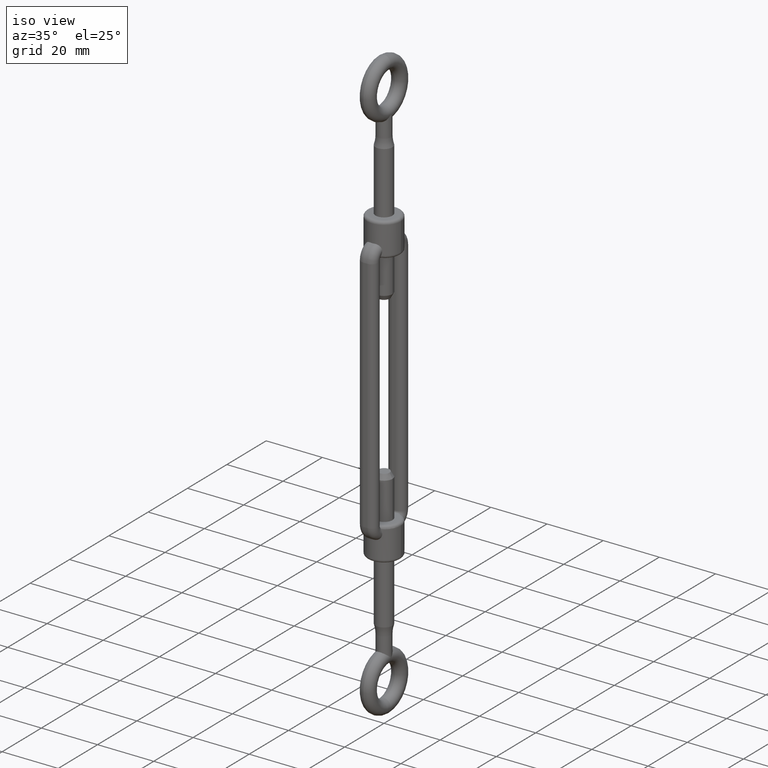
[diagram: clean part render]
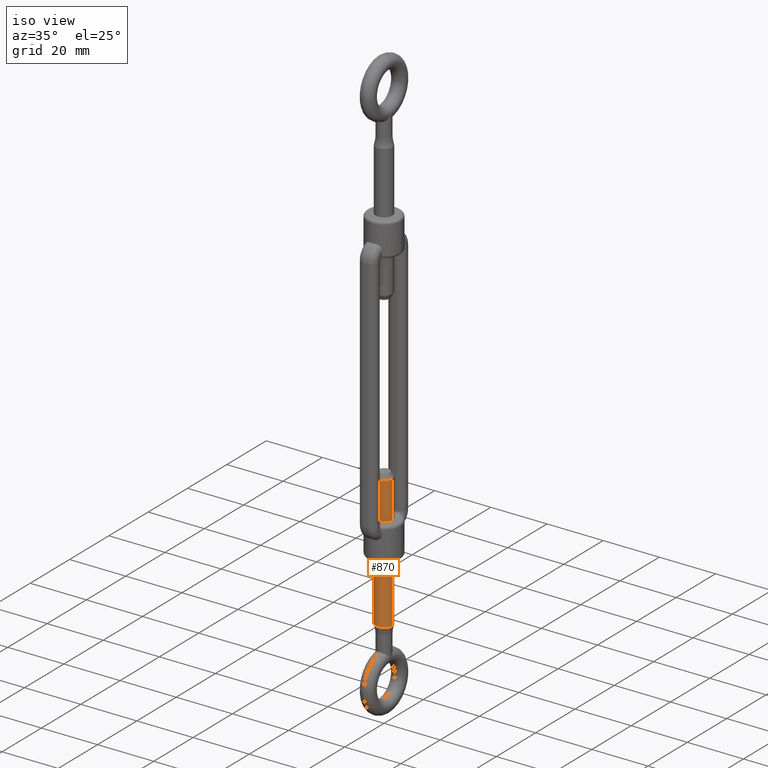
[diagram: same view with one face highlighted and labeled with its STEP entity id]
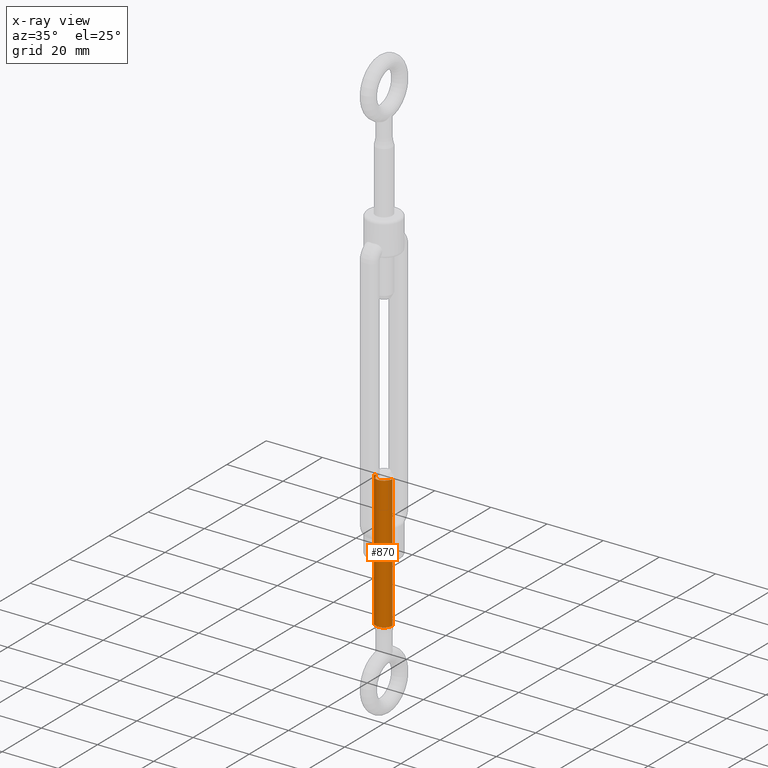
[diagram: x-ray of the same camera — body ghosted, the highlighted face saturated]
A machine part, iso view. The second image highlights one B-rep face of the part: STEP entity #870.
The next image is the same camera in x-ray: the body ghosted, the highlighted face saturated — about 0% of this face is hidden behind the body in this view.
In plain terms, the highlighted cylindrical surface (edge-blend (fillet) strip) has radius 3 mm, axis along (-0, 0, 1).
Its self-contained STEP definition (entity closure, byte-faithful):
#152 = VERTEX_POINT ( 'NONE', #17643 ) ;
#409 = CARTESIAN_POINT ( 'NONE',  ( 0.0000000000000000000, -28.99999999999999600, -3.000000000000000400 ) ) ;
#435 = ORIENTED_EDGE ( 'NONE', *, *, #14522, .F. ) ;
#759 = CARTESIAN_POINT ( 'NONE',  ( 0.0000000000000000000, -28.99999999999999600, -3.000000000000000400 ) ) ;
#870 = ADVANCED_FACE ( 'NONE', ( #2430 ), #6665, .T. ) ;
#934 = AXIS2_PLACEMENT_3D ( 'NONE', #11656, #5301, #13402 ) ;
#1360 = CIRCLE ( 'NONE', #934, 3.000000000000000400 ) ;
#1734 = AXIS2_PLACEMENT_3D ( 'NONE', #5156, #16479, #14819 ) ;
#1903 = LINE ( 'NONE', #15150, #12581 ) ;
#2229 = LINE ( 'NONE', #759, #10181 ) ;
#2268 = CARTESIAN_POINT ( 'NONE',  ( 3.673940397442060400E-016, -28.99999999999999600, 3.000000000000000400 ) ) ;
#2430 = FACE_OUTER_BOUND ( 'NONE', #11595, .T. ) ;
#2695 = DIRECTION ( 'NONE',  ( -0.0000000000000000000, -1.000000000000000000, -0.0000000000000000000 ) ) ;
#2711 = ORIENTED_EDGE ( 'NONE', *, *, #8789, .F. ) ;
#3820 = DIRECTION ( 'NONE',  ( -0.0000000000000000000, -1.000000000000000000, -0.0000000000000000000 ) ) ;
#4317 = VERTEX_POINT ( 'NONE', #2268 ) ;
#5156 = CARTESIAN_POINT ( 'NONE',  ( 0.0000000000000000000, -28.99999999999999600, 0.0000000000000000000 ) ) ;
#5301 = DIRECTION ( 'NONE',  ( -0.0000000000000000000, 1.000000000000000000, -0.0000000000000000000 ) ) ;
#5641 = CARTESIAN_POINT ( 'NONE',  ( 3.673940397442060400E-016, -76.26794919243113200, 3.000000000000000400 ) ) ;
#6665 = CYLINDRICAL_SURFACE ( 'NONE', #10714, 3.000000000000000400 ) ;
#8789 = EDGE_CURVE ( 'NONE', #4317, #15440, #17440, .T. ) ;
#9305 = VERTEX_POINT ( 'NONE', #5641 ) ;
#10155 = DIRECTION ( 'NONE',  ( -0.0000000000000000000, -1.000000000000000000, -0.0000000000000000000 ) ) ;
#10181 = VECTOR ( 'NONE', #3820, 1000.000000000000000 ) ;
#10714 = AXIS2_PLACEMENT_3D ( 'NONE', #10813, #2695, #16995 ) ;
#10813 = CARTESIAN_POINT ( 'NONE',  ( 0.0000000000000000000, -28.99999999999999600, 0.0000000000000000000 ) ) ;
#11516 = EDGE_CURVE ( 'NONE', #4317, #9305, #1903, .T. ) ;
#11595 = EDGE_LOOP ( 'NONE', ( #2711, #11821, #20485, #435 ) ) ;
#11656 = CARTESIAN_POINT ( 'NONE',  ( 0.0000000000000000000, -76.26794919243113200, 0.0000000000000000000 ) ) ;
#11821 = ORIENTED_EDGE ( 'NONE', *, *, #11516, .T. ) ;
#12581 = VECTOR ( 'NONE', #10155, 1000.000000000000000 ) ;
#13402 = DIRECTION ( 'NONE',  ( 0.0000000000000000000, 0.0000000000000000000, 1.000000000000000000 ) ) ;
#14522 = EDGE_CURVE ( 'NONE', #15440, #152, #2229, .T. ) ;
#14819 = DIRECTION ( 'NONE',  ( 0.0000000000000000000, 0.0000000000000000000, 1.000000000000000000 ) ) ;
#15150 = CARTESIAN_POINT ( 'NONE',  ( 3.673940397442060400E-016, -28.99999999999999600, 3.000000000000000400 ) ) ;
#15440 = VERTEX_POINT ( 'NONE', #409 ) ;
#16479 = DIRECTION ( 'NONE',  ( 0.0000000000000000000, 1.000000000000000000, 0.0000000000000000000 ) ) ;
#16995 = DIRECTION ( 'NONE',  ( 0.0000000000000000000, 0.0000000000000000000, -1.000000000000000000 ) ) ;
#17440 = CIRCLE ( 'NONE', #1734, 3.000000000000000400 ) ;
#17643 = CARTESIAN_POINT ( 'NONE',  ( 0.0000000000000000000, -76.26794919243113200, -3.000000000000000400 ) ) ;
#19750 = EDGE_CURVE ( 'NONE', #9305, #152, #1360, .T. ) ;
#20485 = ORIENTED_EDGE ( 'NONE', *, *, #19750, .T. ) ;